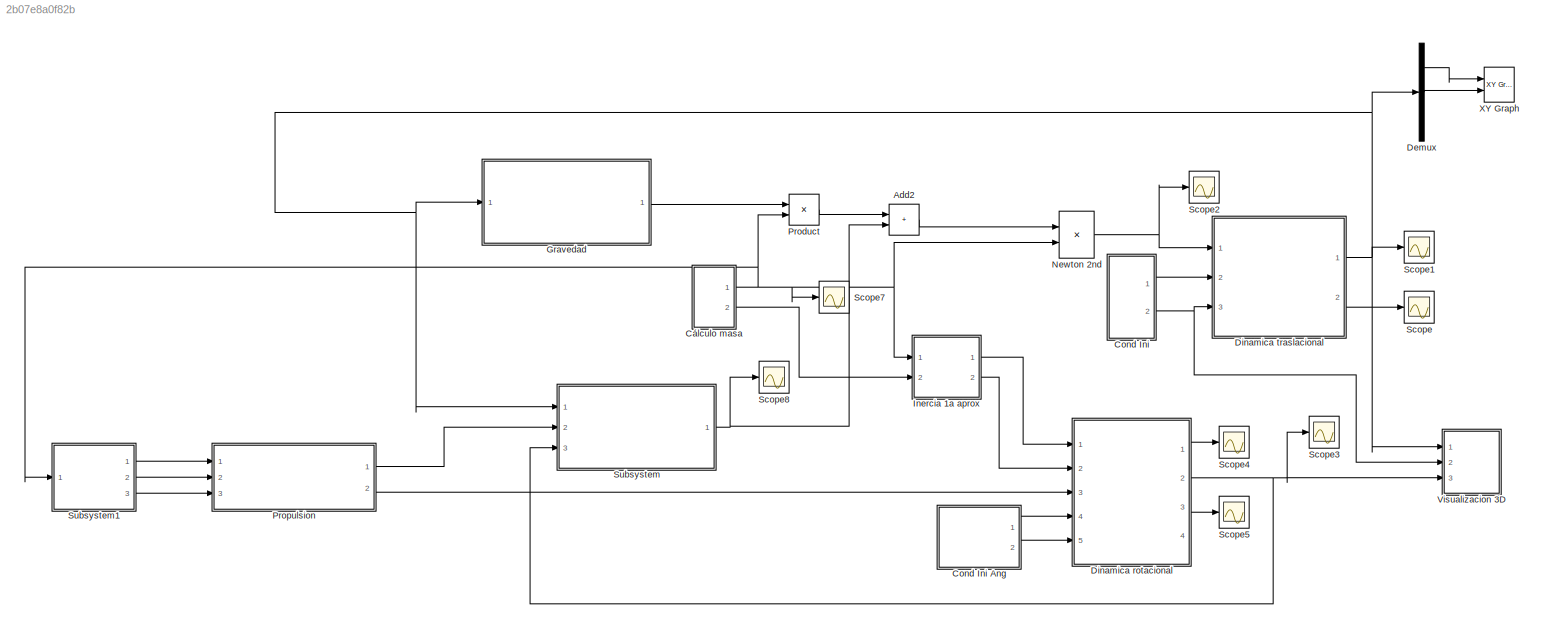
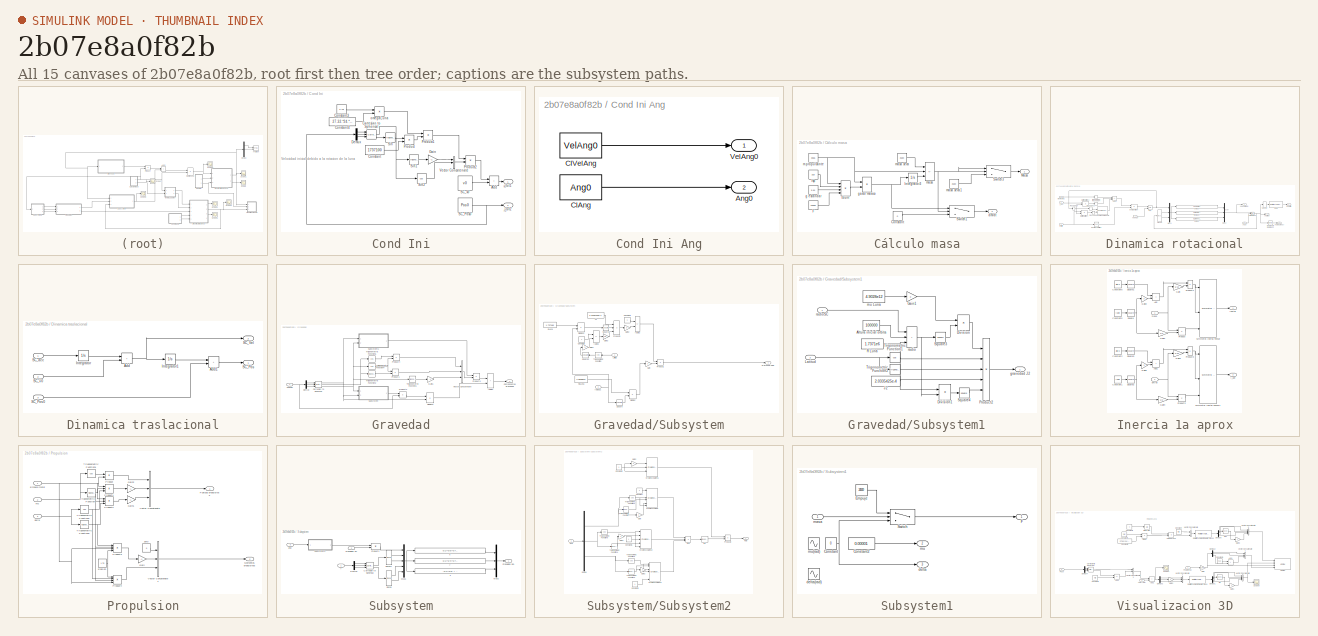
[diagram: thumbnail index - all 15 canvases of the model, root first then tree order]
MODEL slx_2b07e8a0f82b
KIND model
CONFIG AbsTol = auto
CONFIG EnableMultiTasking = off
CONFIG FixedStep = auto
CONFIG MaxStep = auto
CONFIG MinStep = auto
CONFIG RelTol = 1e-3
CONFIG SampleTimeConstraint = Unconstrained
CONFIG SolverName = VariableStepAuto
CONFIG StartTime = 0.0
CONFIG StopTime = 300
WORKSPACE source: mxarray member
WORKSPACE Ang0 = [0 0 0]
WORKSPACE VelAng0 = [0 0 0]
WORKSPACE altura = 3.5
WORKSPACE delta = 0.05
WORKSPACE mu = 0.01
WORKSPACE r = 2.25
WORKSPACE radio = 2.25
BLOCK [Sum] Add2
  IconShape = rectangular
  Ports = [2, 1]
BLOCK [SubSystem] Cond Ini
  Ports = [0, 2]
  RequestExecContextInheritance = off
BLOCK [SubSystem] Cond Ini Ang
  Ports = [0, 2]
  RequestExecContextInheritance = off
BLOCK [Outport] Cond Ini Ang/Ang0
  IconDisplay = Signal name
  Port = 2
BLOCK [Constant] Cond Ini Ang/CIAng
  Value = Ang0
  VectorParams1D = off
BLOCK [Constant] Cond Ini Ang/CIVelAng
  Value = VelAng0
  VectorParams1D = off
BLOCK [Outport] Cond Ini Ang/VelAng0
  IconDisplay = Signal name
BLOCK [Sum] Cond Ini/Add
  IconShape = rectangular
  Ports = [2, 1]
BLOCK [Reference] Cond Ini/Cartesian to Spherical  REF=simulink_extras/Transformations/Cartesian to
Spherical
  Ports = [3, 3]
  SourceBlock = simulink_extras/Transformations/Cartesian to\nSpherical
  SourceProductBaseCode = SL
  SourceType = Cart2Sph
BLOCK [Constant] Cond Ini/Constant
  Value = 1737100
BLOCK [Constant] Cond Ini/Constant3
  Value = 2.*pi
BLOCK [Constant] Cond Ini/Constant4
  Value = 27.32.*24.*3600
BLOCK [Demux] Cond Ini/Demux
  Outputs = 3
  Ports = [1, 3]
BLOCK [Gain] Cond Ini/Gain
  Gain = -1
BLOCK [Outport] Cond Ini/Out1
  IconDisplay = Signal name
BLOCK [Outport] Cond Ini/Out2
  IconDisplay = Signal name
  Port = 2
BLOCK [Product] Cond Ini/Product
  Ports = [2, 1]
BLOCK [Product] Cond Ini/Product1
  Ports = [2, 1]
BLOCK [Product] Cond Ini/Product2
  Ports = [2, 1]
BLOCK [Constant] Cond Ini/SC_Pos0
  Value = Pos0
  VectorParams1D = off
BLOCK [Constant] Cond Ini/SC_v0
  Value = v0
  VectorParams1D = off
BLOCK [Trigonometry] Cond Ini/Sin
  Ports = [1, 1]
BLOCK [Trigonometry] Cond Ini/Sin1
  Ports = [1, 1]
BLOCK [Trigonometry] Cond Ini/Sin2
  Operator = cos
  Ports = [1, 1]
BLOCK [Concatenate] Cond Ini/Vector Concatenate
  NumInputs = 3
  Ports = [3, 1]
BLOCK [Product] Cond Ini/omegaLuna
  Inputs = */
  Ports = [2, 1]
BLOCK [SubSystem] Cálculo masa
  Ports = [0, 2]
  RequestExecContextInheritance = off
BLOCK [Constant] Cálculo masa/Constant
  Value = 0
BLOCK [Constant] Cálculo masa/F
  Value = 24500
BLOCK [Integrator] Cálculo masa/Integrator3
  Ports = [1, 1]
BLOCK [Constant] Cálculo masa/Isp
  Value = 315
BLOCK [Outport] Cálculo masa/Masa
BLOCK [Switch] Cálculo masa/Switch1
  Criteria = u2 > Threshold
  InputSameDT = off
  SaturateOnIntegerOverflow = off
  Threshold = 2530
BLOCK [Switch] Cálculo masa/Switch3
  Criteria = u2 > Threshold
  InputSameDT = off
  SaturateOnIntegerOverflow = off
  Threshold = 2530
BLOCK [Outport] Cálculo masa/dm//dt
  Port = 2
BLOCK [Constant] Cálculo masa/g estandar
  Value = 9.81
BLOCK [Product] Cálculo masa/gasto másico
  Inputs = */
  Ports = [2, 1]
BLOCK [Constant] Cálculo masa/m propulsante
  Value = 2555
BLOCK [Sum] Cálculo masa/masa
  IconShape = rectangular
  Inputs = ++-
  Ports = [3, 1]
BLOCK [Constant] Cálculo masa/masa seca
  Value = 2530
BLOCK [Constant] Cálculo masa/masa seca1
  Value = 2530
BLOCK [Product] Cálculo masa/tburn
  Inputs = ***/
  Ports = [4, 1]
BLOCK [Demux] Demux
  Outputs = 3
  Ports = [1, 3]
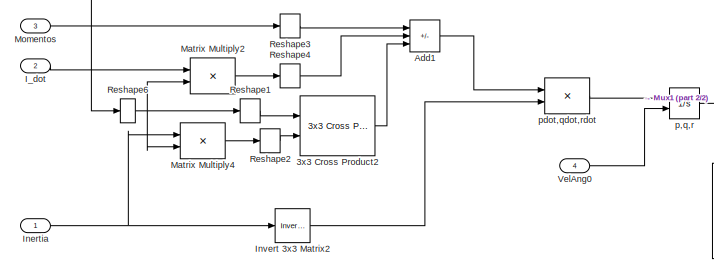
[diagram: Dinamica rotacional - part 1/2, left side, full height]
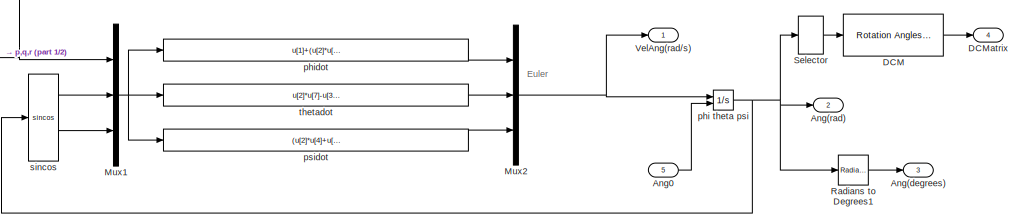
[diagram: Dinamica rotacional - part 2/2, middle right region]
BLOCK [SubSystem] Dinamica rotacional
  Ports = [5, 4]
  RequestExecContextInheritance = off
BLOCK [Reference] Dinamica rotacional/3x3 Cross Product2  REF=sharedutil/3x3 Cross Product
  Ports = [2, 1]
  SourceBlock = sharedutil/3x3 Cross Product
  SourceProductBaseCode = AE,PW,MT,UV,VE,VP
  SourceType = CrossProduct
BLOCK [Sum] Dinamica rotacional/Add1
  IconShape = rectangular
  Inputs = +--
  Ports = [3, 1]
BLOCK [Outport] Dinamica rotacional/Ang(degrees)
  Port = 3
BLOCK [Outport] Dinamica rotacional/Ang(rad)
  Port = 2
BLOCK [Inport] Dinamica rotacional/Ang0
  Port = 5
BLOCK [Reference] Dinamica rotacional/DCM  REF=sharedtransform/Rotation Angles to
Direction Cosine Matrix
  AttributesFormatString = Rotation Order: %<rotationOrder>
  Ports = [1, 1]
  SourceBlock = sharedtransform/Rotation Angles to\nDirection Cosine Matrix
  SourceProductBaseCode = AE,PW,MT,UV,VE,VP
  SourceType = Ang2DCM
BLOCK [Outport] Dinamica rotacional/DCMatrix
  Port = 4
BLOCK [Inport] Dinamica rotacional/I_dot
  Port = 2
BLOCK [Inport] Dinamica rotacional/Inertia
BLOCK [Reference] Dinamica rotacional/Invert 3x3 Matrix2  REF=aerolibutil/Invert 
3x3 Matrix
  Ports = [1, 1]
  SourceBlock = aerolibutil/Invert \n3x3 Matrix
  SourceProductBaseCode = AE
  SourceType = Invert 3x3 Matrix
BLOCK [Product] Dinamica rotacional/Matrix Multiply2
  Multiplication = Matrix(*)
  Ports = [2, 1]
BLOCK [Product] Dinamica rotacional/Matrix Multiply4
  Multiplication = Matrix(*)
  Ports = [2, 1]
BLOCK [Inport] Dinamica rotacional/Momentos
  Port = 3
BLOCK [Mux] Dinamica rotacional/Mux1
  DisplayOption = bar
  Inputs = [3 3 3]
  Ports = [3, 1]
BLOCK [Mux] Dinamica rotacional/Mux2
  DisplayOption = bar
  Inputs = 3
  Ports = [3, 1]
BLOCK [Reference] Dinamica rotacional/Radians to Degrees1  REF=simulink_extras/Transformations/Radians
to Degrees
  Ports = [1, 1]
  SourceBlock = simulink_extras/Transformations/Radians\nto Degrees
  SourceProductBaseCode = SL
  SourceType = RadiansToDegrees
BLOCK [Reshape] Dinamica rotacional/Reshape1
  OutputDimensionality = Row vector (2-D)
  Ports = [1, 1]
BLOCK [Reshape] Dinamica rotacional/Reshape2
  OutputDimensionality = Row vector (2-D)
  Ports = [1, 1]
BLOCK [Reshape] Dinamica rotacional/Reshape3
  OutputDimensionality = Row vector (2-D)
  Ports = [1, 1]
BLOCK [Reshape] Dinamica rotacional/Reshape4
  OutputDimensionality = Row vector (2-D)
  Ports = [1, 1]
BLOCK [Reshape] Dinamica rotacional/Reshape6
  OutputDimensionality = Column vector (2-D)
  Ports = [1, 1]
BLOCK [Selector] Dinamica rotacional/Selector
  IndexOptions = Index vector (dialog)
  Indices = [3 2 1]
  InputPortWidth = 3
  OutputSizes = 1
  Ports = [1, 1]
BLOCK [Outport] Dinamica rotacional/VelAng(rad//s)
BLOCK [Inport] Dinamica rotacional/VelAng0
  Port = 4
BLOCK [Integrator] Dinamica rotacional/p,q,r
  InitialConditionSource = external
  Ports = [2, 1]
BLOCK [Product] Dinamica rotacional/pdot,qdot,rdot
  Multiplication = Matrix(*)
  Ports = [2, 1]
BLOCK [Integrator] Dinamica rotacional/phi theta psi
  InitialConditionSource = external
  Ports = [2, 1]
  WrapState = on
BLOCK [Fcn] Dinamica rotacional/phidot
  Expr = u[1]+(u[2]*u[4]+u[3]*u[7])*(u[5]/u[8])
BLOCK [Fcn] Dinamica rotacional/psidot
  Expr = (u[2]*u[4]+u[3]*u[7])/u[8]
BLOCK [Trigonometry] Dinamica rotacional/sincos
  Operator = sincos
  Ports = [1, 2]
BLOCK [Fcn] Dinamica rotacional/thetadot
  Expr = u[2]*u[7]-u[3]*u[4]
BLOCK [SubSystem] Dinamica traslacional
  Ports = [3, 2]
  RequestExecContextInheritance = off
BLOCK [Sum] Dinamica traslacional/Add
  IconShape = rectangular
  Ports = [2, 1]
BLOCK [Sum] Dinamica traslacional/Add1
  IconShape = rectangular
  Ports = [2, 1]
BLOCK [Integrator] Dinamica traslacional/Integrator
  Ports = [1, 1]
BLOCK [Integrator] Dinamica traslacional/Integrator1
  Ports = [1, 1]
BLOCK [Outport] Dinamica traslacional/SC_Pos
BLOCK [Inport] Dinamica traslacional/SC_Pos0
  Port = 3
BLOCK [Outport] Dinamica traslacional/SC_Vel
  Port = 2
BLOCK [Inport] Dinamica traslacional/SC_acc
BLOCK [Inport] Dinamica traslacional/SC_v0
  Port = 2
BLOCK [SubSystem] Gravedad
  Ports = [1, 1]
  RequestExecContextInheritance = off
BLOCK [Reference] Gravedad/Cartesian to Spherical  REF=simulink_extras/Transformations/Cartesian to
Spherical
  Ports = [3, 3]
  SourceBlock = simulink_extras/Transformations/Cartesian to\nSpherical
  SourceProductBaseCode = SL
  SourceType = Cart2Sph
BLOCK [Outport] Gravedad/Componentes gravedad
BLOCK [Demux] Gravedad/Demux
  Outputs = 3
  Ports = [1, 3]
BLOCK [Product] Gravedad/Division2
  Inputs = */
  Ports = [2, 1]
BLOCK [Gain] Gravedad/Gain1
  Gain = -1
BLOCK [Inport] Gravedad/Position
BLOCK [Product] Gravedad/Product1
  Ports = [2, 1]
BLOCK [Product] Gravedad/Product2
  Ports = [2, 1]
BLOCK [Product] Gravedad/Product3
  Ports = [2, 1]
BLOCK [Product] Gravedad/Product4
  Ports = [2, 1]
BLOCK [SubSystem] Gravedad/Subsystem
  Ports = [2, 1]
  RequestExecContextInheritance = off
BLOCK [Constant] Gravedad/Subsystem/Constant1
BLOCK [Constant] Gravedad/Subsystem/Constant2
BLOCK [Product] Gravedad/Subsystem/Division
  Inputs = */
  Ports = [2, 1]
BLOCK [Product] Gravedad/Subsystem/Division2
  Inputs = */
  Ports = [2, 1]
BLOCK [Gain] Gravedad/Subsystem/Gain
  Gain = -1
BLOCK [Gain] Gravedad/Subsystem/Gain2
  Gain = 3
BLOCK [Gain] Gravedad/Subsystem/Gain3
  Gain = 0.5
BLOCK [Gain] Gravedad/Subsystem/Gain4
  Gain = 3
BLOCK [Constant] Gravedad/Subsystem/J2
  Value = 2.0335425e-4
BLOCK [Inport] Gravedad/Subsystem/Latitud
BLOCK [Product] Gravedad/Subsystem/Product1
  Ports = [2, 1]
BLOCK [Product] Gravedad/Subsystem/Product3
  Inputs = 3
  Ports = [3, 1]
BLOCK [Constant] Gravedad/Subsystem/R Luna
  Value = 1.7371e6
BLOCK [Math] Gravedad/Subsystem/Square
  Operator = square
  Ports = [1, 1]
BLOCK [Math] Gravedad/Subsystem/Square1
  Operator = square
  Ports = [1, 1]
BLOCK [Math] Gravedad/Subsystem/Square2
  Operator = square
  Ports = [1, 1]
BLOCK [Trigonometry] Gravedad/Subsystem/Trigonometric Function
  Operator = cos
  Ports = [1, 1]
BLOCK [Outport] Gravedad/Subsystem/gravedad radial
BLOCK [Constant] Gravedad/Subsystem/mu Luna
  Value = 4.9028e12
BLOCK [Sum] Gravedad/Subsystem/radio2
  IconShape = rectangular
  Inputs = +-
  Ports = [2, 1]
BLOCK [Sum] Gravedad/Subsystem/radio3
  IconShape = rectangular
  Inputs = -+
  Ports = [2, 1]
BLOCK [Inport] Gravedad/Subsystem/radioSC
  Port = 2
BLOCK [SubSystem] Gravedad/Subsystem1
  Ports = [2, 1]
  RequestExecContextInheritance = off
BLOCK [Constant] Gravedad/Subsystem1/Altura inicial orbita
  Value = 100000
BLOCK [Product] Gravedad/Subsystem1/Division
  Inputs = */
  Ports = [2, 1]
BLOCK [Product] Gravedad/Subsystem1/Division1
  Inputs = */
  Ports = [2, 1]
BLOCK [Gain] Gravedad/Subsystem1/Gain1
  Gain = 3
BLOCK [Constant] Gravedad/Subsystem1/J2
  Value = 2.0335425e-4
BLOCK [Inport] Gravedad/Subsystem1/Latitud
  Port = 2
BLOCK [Product] Gravedad/Subsystem1/Product2
  Inputs = 5
  Ports = [5, 1]
BLOCK [Constant] Gravedad/Subsystem1/R Luna
  Value = 1.7371e6
BLOCK [Math] Gravedad/Subsystem1/Square3
  Operator = square
  Ports = [1, 1]
BLOCK [Math] Gravedad/Subsystem1/Square4
  Operator = square
  Ports = [1, 1]
BLOCK [Trigonometry] Gravedad/Subsystem1/Trigonometric Function1
  Operator = cos
  Ports = [1, 1]
BLOCK [Trigonometry] Gravedad/Subsystem1/Trigonometric Function2
  Ports = [1, 1]
BLOCK [Outport] Gravedad/Subsystem1/gravedad J2
BLOCK [Constant] Gravedad/Subsystem1/mu Luna
  Value = 4.9028e12
BLOCK [Sum] Gravedad/Subsystem1/radio
  IconShape = rectangular
  Inputs = +++
  Ports = [3, 1]
BLOCK [Inport] Gravedad/Subsystem1/radioSC
BLOCK [Trigonometry] Gravedad/Trigonometric Function1
  Ports = [1, 1]
BLOCK [Trigonometry] Gravedad/Trigonometric Function2
  Ports = [1, 1]
BLOCK [Trigonometry] Gravedad/Trigonometric Function4
  Operator = cos
  Ports = [1, 1]
BLOCK [Trigonometry] Gravedad/Trigonometric Function5
  Operator = cos
  Ports = [1, 1]
BLOCK [Concatenate] Gravedad/Vector Concatenate
  NumInputs = 3
  Ports = [3, 1]
BLOCK [Sum] Gravedad/radio2
  IconShape = rectangular
  Ports = [2, 1]
BLOCK [SubSystem] Inercia 1a aprox
  Ports = [2, 2]
  RequestExecContextInheritance = off
BLOCK [Sum] Inercia 1a aprox/Add
  IconShape = rectangular
  Ports = [2, 1]
BLOCK [Sum] Inercia 1a aprox/Add1
  IconShape = rectangular
  Ports = [2, 1]
BLOCK [Constant] Inercia 1a aprox/Constant1
  Value = radio
BLOCK [Constant] Inercia 1a aprox/Constant2
  Value = altura
BLOCK [Constant] Inercia 1a aprox/Constant5
  Value = radio
BLOCK [Constant] Inercia 1a aprox/Constant6
  Value = altura
BLOCK [Gain] Inercia 1a aprox/Gain
  Gain = 1/12
BLOCK [Gain] Inercia 1a aprox/Gain1
  Gain = 1/2
BLOCK [Gain] Inercia 1a aprox/Gain2
  Gain = 3
BLOCK [Gain] Inercia 1a aprox/Gain3
  Gain = 1/12
BLOCK [Gain] Inercia 1a aprox/Gain4
  Gain = 1/2
BLOCK [Gain] Inercia 1a aprox/Gain5
  Gain = 3
BLOCK [Outport] Inercia 1a aprox/I_dot
  Port = 2
BLOCK [Outport] Inercia 1a aprox/Inertia
BLOCK [Product] Inercia 1a aprox/Product
  Ports = [2, 1]
BLOCK [Product] Inercia 1a aprox/Product1
  Ports = [2, 1]
BLOCK [Product] Inercia 1a aprox/Product2
  Ports = [2, 1]
BLOCK [Product] Inercia 1a aprox/Product3
  Ports = [2, 1]
BLOCK [Math] Inercia 1a aprox/Square
  Operator = square
  Ports = [1, 1]
BLOCK [Math] Inercia 1a aprox/Square1
  Operator = square
  Ports = [1, 1]
BLOCK [Math] Inercia 1a aprox/Square2
  Operator = square
  Ports = [1, 1]
BLOCK [Math] Inercia 1a aprox/Square3
  Operator = square
  Ports = [1, 1]
BLOCK [Reference] Inercia 1a aprox/Symmetric Inertia Tensor  REF=aerolibbdyn/Symmetric Inertia Tensor
  Ports = [6, 1]
  SourceBlock = aerolibbdyn/Symmetric Inertia Tensor
  SourceProductBaseCode = AE
  SourceType = Symmetric Inertia Tensor
BLOCK [Reference] Inercia 1a aprox/Symmetric Inertia Tensor1  REF=aerolibbdyn/Symmetric Inertia Tensor
  Ports = [6, 1]
  SourceBlock = aerolibbdyn/Symmetric Inertia Tensor
  SourceProductBaseCode = AE
  SourceType = Symmetric Inertia Tensor
BLOCK [Inport] Inercia 1a aprox/dm//dt
  Port = 2
BLOCK [Inport] Inercia 1a aprox/masa
BLOCK [Product] Newton 2nd
  Inputs = */
  Ports = [2, 1]
BLOCK [Product] Product
  Ports = [2, 1]
BLOCK [SubSystem] Propulsion
  Ports = [3, 2]
  RequestExecContextInheritance = off
BLOCK [Inport] Propulsion/Empuje motor
BLOCK [Constant] Propulsion/Epsilon
  Value = 1.75
BLOCK [Outport] Propulsion/Fuerzas propulsivas
BLOCK [Gain] Propulsion/Gain
  Gain = -1
BLOCK [Gain] Propulsion/Gain1
  Gain = -1
BLOCK [Gain] Propulsion/Gain2
  Gain = -1
BLOCK [Outport] Propulsion/Momentos propulsivos
  Port = 2
BLOCK [Product] Propulsion/Product
  Ports = [2, 1]
BLOCK [Product] Propulsion/Product1
  Inputs = 3
  Ports = [3, 1]
BLOCK [Product] Propulsion/Product2
  Inputs = 3
  Ports = [3, 1]
BLOCK [Product] Propulsion/Product3
  Inputs = 4
  Ports = [4, 1]
BLOCK [Product] Propulsion/Product4
  Inputs = 4
  Ports = [4, 1]
BLOCK [Trigonometry] Propulsion/Trigonometric Function
  Ports = [1, 1]
BLOCK [Trigonometry] Propulsion/Trigonometric Function1
  Operator = cos
  Ports = [1, 1]
BLOCK [Trigonometry] Propulsion/Trigonometric Function2
  Operator = cos
  Ports = [1, 1]
BLOCK [Trigonometry] Propulsion/Trigonometric Function3
  Ports = [1, 1]
BLOCK [Concatenate] Propulsion/Vector Concatenate
  NumInputs = 3
  Ports = [3, 1]
BLOCK [Concatenate] Propulsion/Vector Concatenate1
  NumInputs = 3
  Ports = [3, 1]
BLOCK [Inport] Propulsion/delta
  Port = 3
BLOCK [Inport] Propulsion/mu
  Port = 2
BLOCK [Constant] Propulsion/zero
  Value = 0
BLOCK [Scope] Scope
  Floating = off
  NumInputPorts = 1
  Ports = [1]
  ScopeSpecificationString = Simulink.scopes.TimeScopeBlockCfg('CurrentConfiguration', extmgr.ConfigurationSet(extmgr.Configuration('Core','General UI',true),extmgr.Configuration('Core','Source UI',true),extmgr.Configuration('Sources','WiredSimulink',true,'DataLoggingVariableName','ScopeData1'),extmgr.Configuration('Visuals','Time Domain',true,'SerializedDisplays',{struct('MinYLimReal','-124.77245','MaxYLimReal','1122.95202',...<+1835ch>
BLOCK [Scope] Scope1
  Floating = off
  NumInputPorts = 1
  Ports = [1]
  ScopeSpecificationString = Simulink.scopes.TimeScopeBlockCfg('CurrentConfiguration', extmgr.ConfigurationSet(extmgr.Configuration('Core','General UI',true),extmgr.Configuration('Core','Source UI',true),extmgr.Configuration('Sources','WiredSimulink',true),extmgr.Configuration('Visuals','Time Domain',true,'SerializedDisplays',{struct('MinYLimReal','1734234.95178','MaxYLimReal','1741341.918','YLabelReal','','MinYLimMag','17342...<+1816ch>
BLOCK [Scope] Scope2
  Floating = off
  NumInputPorts = 1
  Ports = [1]
  ScopeSpecificationString = Simulink.scopes.TimeScopeBlockCfg('CurrentConfiguration', extmgr.ConfigurationSet(extmgr.Configuration('Core','General UI',true),extmgr.Configuration('Core','Source UI',true),extmgr.Configuration('Sources','WiredSimulink',true,'DataLoggingVariableName','ScopeData1'),extmgr.Configuration('Visuals','Time Domain',true,'SerializedDisplays',{struct('MinYLimReal','-1.77686','MaxYLimReal','1.65732','YLab...<+1508ch>
BLOCK [Scope] Scope3
  Floating = off
  NumInputPorts = 1
  Ports = [1]
  ScopeSpecificationString = Simulink.scopes.TimeScopeBlockCfg('CurrentConfiguration', extmgr.ConfigurationSet(extmgr.Configuration('Core','General UI',true),extmgr.Configuration('Core','Source UI',true),extmgr.Configuration('Sources','WiredSimulink',true,'DataLoggingVariableName','ScopeData2'),extmgr.Configuration('Visuals','Time Domain',true,'SerializedDisplays',{struct('MinYLimReal','-3.88724','MaxYLimReal','3.82661','YLab...<+1819ch>
BLOCK [Scope] Scope4
  Floating = off
  NumInputPorts = 1
  Ports = [1]
  ScopeSpecificationString = Simulink.scopes.TimeScopeBlockCfg('CurrentConfiguration', extmgr.ConfigurationSet(extmgr.Configuration('Core','General UI',true),extmgr.Configuration('Core','Source UI',true),extmgr.Configuration('Sources','WiredSimulink',true,'DataLoggingVariableName','ScopeData3'),extmgr.Configuration('Visuals','Time Domain',true,'SerializedDisplays',{struct('MinYLimReal','-1.00000','MaxYLimReal','1.00000','YLab...<+1434ch>
BLOCK [Scope] Scope5
  Floating = off
  NumInputPorts = 1
  Ports = [1]
  ScopeSpecificationString = Simulink.scopes.TimeScopeBlockCfg('CurrentConfiguration', extmgr.ConfigurationSet(extmgr.Configuration('Core','General UI',true),extmgr.Configuration('Core','Source UI',true),extmgr.Configuration('Sources','WiredSimulink',true,'DataLoggingVariableName','ScopeData2'),extmgr.Configuration('Visuals','Time Domain',true,'SerializedDisplays',{struct('MinYLimReal','-221.33067','MaxYLimReal','213.2335','Y...<+1446ch>
BLOCK [Scope] Scope7
  Floating = off
  NumInputPorts = 1
  Ports = [1]
  ScopeSpecificationString = Simulink.scopes.TimeScopeBlockCfg('CurrentConfiguration', extmgr.ConfigurationSet(extmgr.Configuration('Core','General UI',true),extmgr.Configuration('Core','Source UI',true),extmgr.Configuration('Sources','WiredSimulink',true,'DataLoggingVariableName','ScopeData1'),extmgr.Configuration('Visuals','Time Domain',true,'SerializedDisplays',{struct('MinYLimReal','2237.5','MaxYLimReal','5162.5','YLabelR...<+1440ch>
BLOCK [Scope] Scope8
  Floating = off
  NumInputPorts = 1
  Ports = [1]
  ScopeSpecificationString = Simulink.scopes.TimeScopeBlockCfg('CurrentConfiguration', extmgr.ConfigurationSet(extmgr.Configuration('Core','General UI',true),extmgr.Configuration('Core','Source UI',true),extmgr.Configuration('Sources','WiredSimulink',true,'DataLoggingVariableName','ScopeData1'),extmgr.Configuration('Visuals','Time Domain',true,'SerializedDisplays',{struct('MinYLimReal','-35037.11989','MaxYLimReal','36837.7738...<+1808ch>
BLOCK [SubSystem] Subsystem
  Ports = [3, 1]
  RequestExecContextInheritance = off
BLOCK [Reference] Subsystem/Cartesian to Spherical  REF=simulink_extras/Transformations/Cartesian to
Spherical
  Ports = [3, 3]
  SourceBlock = simulink_extras/Transformations/Cartesian to\nSpherical
  SourceProductBaseCode = SL
  SourceType = Cart2Sph
BLOCK [Demux] Subsystem/Demux
  Outputs = 3
  Ports = [1, 3]
BLOCK [Mux] Subsystem/Mux1
  DisplayOption = bar
  Inputs = [3 1 1 1 1]
  Ports = [5, 1]
BLOCK [Mux] Subsystem/Mux2
  DisplayOption = bar
  Inputs = 3
  Ports = [3, 1]
BLOCK [Product] Subsystem/Product2
  Multiplication = Matrix(*)
  Ports = [2, 1]
BLOCK [Outport] Subsystem/Propulsion EQ
BLOCK [Inport] Subsystem/Propulsion SC
  Port = 2
BLOCK [SubSystem] Subsystem/Subsystem2
  Ports = [1, 1]
  RequestExecContextInheritance = off
BLOCK [Constant] Subsystem/Subsystem2/Constant
BLOCK [Constant] Subsystem/Subsystem2/Constant1
BLOCK [Constant] Subsystem/Subsystem2/Constant2
BLOCK [Constant] Subsystem/Subsystem2/Constant3
BLOCK [Reference] Subsystem/Subsystem2/Create 3x3 Matrix  REF=sharedutil/Create 3x3 Matrix
  Ports = [9, 1]
  SourceBlock = sharedutil/Create 3x3 Matrix
  SourceProductBaseCode = AE,PW,MT,UV,VE,VP
  SourceType = Create 3x3 Matrix
BLOCK [Reference] Subsystem/Subsystem2/Create 3x3 Matrix1  REF=sharedutil/Create 3x3 Matrix
  Ports = [9, 1]
  SourceBlock = sharedutil/Create 3x3 Matrix
  SourceProductBaseCode = AE,PW,MT,UV,VE,VP
  SourceType = Create 3x3 Matrix
BLOCK [Reference] Subsystem/Subsystem2/Create 3x3 Matrix2  REF=sharedutil/Create 3x3 Matrix
  Ports = [9, 1]
  SourceBlock = sharedutil/Create 3x3 Matrix
  SourceProductBaseCode = AE,PW,MT,UV,VE,VP
  SourceType = Create 3x3 Matrix
BLOCK [Reference] Subsystem/Subsystem2/Create 3x3 Matrix3  REF=sharedutil/Create 3x3 Matrix
  Ports = [9, 1]
  SourceBlock = sharedutil/Create 3x3 Matrix
  SourceProductBaseCode = AE,PW,MT,UV,VE,VP
  SourceType = Create 3x3 Matrix
BLOCK [Demux] Subsystem/Subsystem2/Demux
  Outputs = 3
  Ports = [1, 3]
BLOCK [Gain] Subsystem/Subsystem2/Gain
  Gain = -1
BLOCK [Gain] Subsystem/Subsystem2/Gain1
  Gain = -1
BLOCK [Gain] Subsystem/Subsystem2/Gain2
  Gain = -1
BLOCK [Gain] Subsystem/Subsystem2/Gain3
  Gain = -1
BLOCK [Product] Subsystem/Subsystem2/Product2
  Multiplication = Matrix(*)
  Ports = [2, 1]
BLOCK [Outport] Subsystem/Subsystem2/Ralo
BLOCK [Product] Subsystem/Subsystem2/Rloa
  Inputs = 3
  Multiplication = Matrix(*)
  Ports = [3, 1]
BLOCK [Trigonometry] Subsystem/Subsystem2/Trigonometric Function
  Ports = [1, 1]
BLOCK [Trigonometry] Subsystem/Subsystem2/Trigonometric Function1
  Operator = cos
  Ports = [1, 1]
BLOCK [Trigonometry] Subsystem/Subsystem2/Trigonometric Function2
  Operator = cos
  Ports = [1, 1]
BLOCK [Trigonometry] Subsystem/Subsystem2/Trigonometric Function3
  Ports = [1, 1]
BLOCK [Trigonometry] Subsystem/Subsystem2/Trigonometric Function4
  Ports = [1, 1]
BLOCK [Trigonometry] Subsystem/Subsystem2/Trigonometric Function5
  Operator = cos
  Ports = [1, 1]
BLOCK [Inport] Subsystem/Subsystem2/ang
BLOCK [Reference] Subsystem/Subsystem2/inv  REF=aerolibutil/Invert 
3x3 Matrix
  Ports = [1, 1]
  SourceBlock = aerolibutil/Invert \n3x3 Matrix
  SourceProductBaseCode = AE
  SourceType = Invert 3x3 Matrix
BLOCK [Inport] Subsystem/ang
  Port = 3
BLOCK [Inport] Subsystem/r
BLOCK [Trigonometry] Subsystem/sincos
  Operator = sincos
  Ports = [1, 2]
BLOCK [Trigonometry] Subsystem/sincos1
  Operator = sincos
  Ports = [1, 2]
BLOCK [Fcn] Subsystem/x
  Expr = u[1]*u[5]*u[7]-u[2]*u[4]+u[3]*u[5]*u[6]
BLOCK [Fcn] Subsystem/y
  Expr = u[1]*u[4]*u[7] + u[2]*u[5] + u[3]*u[4]*u[6]
BLOCK [Fcn] Subsystem/z
  Expr = -u[1]*u[6] + u[3]*u[7]
BLOCK [SubSystem] Subsystem1
  Ports = [1, 3]
  RequestExecContextInheritance = off
BLOCK [Constant] Subsystem1/Constant
  Value = 0
BLOCK [Constant] Subsystem1/Constant2
  Value = 0.00001
BLOCK [Constant] Subsystem1/Empuje
  Value = 24500
BLOCK [Outport] Subsystem1/F
BLOCK [Switch] Subsystem1/Switch
  Criteria = u2 > Threshold
  InputSameDT = off
  SaturateOnIntegerOverflow = off
  Threshold = 2530
BLOCK [Outport] Subsystem1/delta
  Port = 3
BLOCK [Sin] Subsystem1/delta(rad)
  Amplitude = 0.01
  Frequency = 0.001
  Ports = [0, 1]
  SampleTime = 0
BLOCK [Inport] Subsystem1/masa
BLOCK [Outport] Subsystem1/mu
  Port = 2
BLOCK [Sin] Subsystem1/mu(rad)
  Amplitude = 0.05
  Frequency = 0.001
  Ports = [0, 1]
  SampleTime = 0
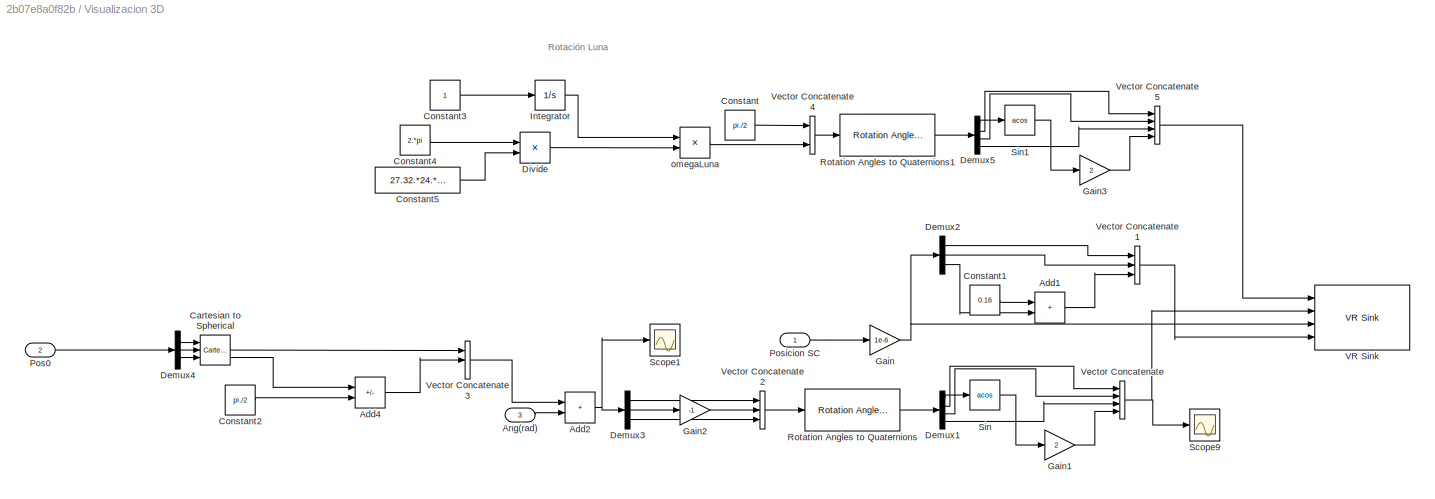
BLOCK [SubSystem] Visualizacion 3D
  Ports = [3]
  RequestExecContextInheritance = off
BLOCK [Sum] Visualizacion 3D/Add1
  IconShape = rectangular
  Ports = [2, 1]
BLOCK [Sum] Visualizacion 3D/Add2
  IconShape = rectangular
  Ports = [2, 1]
BLOCK [Sum] Visualizacion 3D/Add4
  IconShape = rectangular
  Inputs = -+
  Ports = [2, 1]
BLOCK [Inport] Visualizacion 3D/Ang(rad)
  Port = 3
BLOCK [Reference] Visualizacion 3D/Cartesian to Spherical  REF=simulink_extras/Transformations/Cartesian to
Spherical
  Ports = [3, 3]
  SourceBlock = simulink_extras/Transformations/Cartesian to\nSpherical
  SourceProductBaseCode = SL
  SourceType = Cart2Sph
BLOCK [Constant] Visualizacion 3D/Constant
  Value = pi./2
BLOCK [Constant] Visualizacion 3D/Constant1
  Value = 0.16
BLOCK [Constant] Visualizacion 3D/Constant2
  Value = pi./2
BLOCK [Constant] Visualizacion 3D/Constant3
BLOCK [Constant] Visualizacion 3D/Constant4
  Value = 2.*pi
BLOCK [Constant] Visualizacion 3D/Constant5
  Value = 27.32.*24.*3600
BLOCK [Demux] Visualizacion 3D/Demux1
  Ports = [1, 4]
BLOCK [Demux] Visualizacion 3D/Demux2
  Outputs = 3
  Ports = [1, 3]
BLOCK [Demux] Visualizacion 3D/Demux3
  Outputs = 3
  Ports = [1, 3]
BLOCK [Demux] Visualizacion 3D/Demux4
  Outputs = 3
  Ports = [1, 3]
BLOCK [Demux] Visualizacion 3D/Demux5
  Ports = [1, 4]
BLOCK [Product] Visualizacion 3D/Divide
  Inputs = */
  Ports = [2, 1]
BLOCK [Gain] Visualizacion 3D/Gain
  Gain = 1e-6
BLOCK [Gain] Visualizacion 3D/Gain1
  Gain = 2
BLOCK [Gain] Visualizacion 3D/Gain2
  Gain = -1
BLOCK [Gain] Visualizacion 3D/Gain3
  Gain = 2
BLOCK [Integrator] Visualizacion 3D/Integrator
  Ports = [1, 1]
BLOCK [Inport] Visualizacion 3D/Pos0
  Port = 2
BLOCK [Inport] Visualizacion 3D/Posicion SC
BLOCK [Reference] Visualizacion 3D/Rotation Angles to Quaternions  REF=sharedtransform/Rotation Angles to Quaternions
  AttributesFormatString = Rotation Order: %<rotationOrder>
  Ports = [1, 1]
  SourceBlock = sharedtransform/Rotation Angles to Quaternions
  SourceProductBaseCode = AE,PW,MT,UV,VE,VP
  SourceType = Ang2Quat
BLOCK [Reference] Visualizacion 3D/Rotation Angles to Quaternions1  REF=sharedtransform/Rotation Angles to Quaternions
  AttributesFormatString = Rotation Order: %<rotationOrder>
  Ports = [1, 1]
  SourceBlock = sharedtransform/Rotation Angles to Quaternions
  SourceProductBaseCode = AE,PW,MT,UV,VE,VP
  SourceType = Ang2Quat
BLOCK [Scope] Visualizacion 3D/Scope1
  Floating = off
  NumInputPorts = 1
  Ports = [1]
  ScopeSpecificationString = Simulink.scopes.TimeScopeBlockCfg('CurrentConfiguration', extmgr.ConfigurationSet(extmgr.Configuration('Core','General UI',true),extmgr.Configuration('Core','Source UI',true),extmgr.Configuration('Sources','WiredSimulink',true,'DataLoggingVariableName','ScopeData1'),extmgr.Configuration('Visuals','Time Domain',true,'SerializedDisplays',{struct('MinYLimReal','-0.19635','MaxYLimReal','1.76715','YLab...<+1697ch>
BLOCK [Scope] Visualizacion 3D/Scope9
  Floating = off
  NumInputPorts = 1
  Ports = [1]
  ScopeSpecificationString = Simulink.scopes.TimeScopeBlockCfg('CurrentConfiguration', extmgr.ConfigurationSet(extmgr.Configuration('Core','General UI',true),extmgr.Configuration('Core','Source UI',true),extmgr.Configuration('Sources','WiredSimulink',true,'DataLoggingVariableName','ScopeData1'),extmgr.Configuration('Visuals','Time Domain',true,'SerializedDisplays',{struct('MinYLimReal','-0.77551','MaxYLimReal','3.21286','YLab...<+1724ch>
BLOCK [Trigonometry] Visualizacion 3D/Sin
  Operator = acos
  Ports = [1, 1]
BLOCK [Trigonometry] Visualizacion 3D/Sin1
  Operator = acos
  Ports = [1, 1]
BLOCK [Reference] Visualizacion 3D/VR Sink  REF=vrlib/VR Sink
  InstantiateOnLoad = on
  Ports = [4]
  SourceBlock = vrlib/VR Sink
  SourceProductBaseCode = SL
  SourceType = Virtual Reality Sink
BLOCK [Concatenate] Visualizacion 3D/Vector Concatenate
  NumInputs = 4
  Ports = [4, 1]
BLOCK [Concatenate] Visualizacion 3D/Vector Concatenate1
  NumInputs = 3
  Ports = [3, 1]
BLOCK [Concatenate] Visualizacion 3D/Vector Concatenate2
  NumInputs = 3
  Ports = [3, 1]
BLOCK [Concatenate] Visualizacion 3D/Vector Concatenate3
  NumInputs = 3
  Ports = [3, 1]
BLOCK [Concatenate] Visualizacion 3D/Vector Concatenate4
  NumInputs = 3
  Ports = [3, 1]
BLOCK [Concatenate] Visualizacion 3D/Vector Concatenate5
  NumInputs = 4
  Ports = [4, 1]
BLOCK [Product] Visualizacion 3D/omegaLuna
  Ports = [2, 1]
BLOCK [Reference] XY Graph  REF=simulink/Sinks/XY Graph
  Ports = [2]
  SourceBlock = simulink/Sinks/XY Graph
  SourceProductBaseCode = SL
  SourceType = XY scope.
ANNOTATION Cond Ini: Velocidad inicial debido a la rotacion de la luna
ANNOTATION Cond Ini: r0
ANNOTATION Cond Ini: v0
ANNOTATION Dinamica rotacional: Euler
ANNOTATION Visualizacion 3D: Rotación Luna
LINE Add2:1 -> Newton 2nd:1
LINE Cond Ini Ang/CIAng:1 -> Cond Ini Ang/Ang0:1
LINE Cond Ini Ang/CIVelAng:1 -> Cond Ini Ang/VelAng0:1
LINE Cond Ini Ang:1 -> Dinamica rotacional:4
LINE Cond Ini Ang:2 -> Dinamica rotacional:5
LINE Cond Ini/Add:1 -> Cond Ini/Out1:1
NET Cond Ini/Cartesian to Spherical:2 -> Cond Ini/Sin1:1, Cond Ini/Sin2:1
LINE Cond Ini/Cartesian to Spherical:3 -> Cond Ini/Sin:1
LINE Cond Ini/Constant3:1 -> Cond Ini/omegaLuna:1
LINE Cond Ini/Constant4:1 -> Cond Ini/omegaLuna:2
LINE Cond Ini/Constant:1 -> Cond Ini/Product:2
LINE Cond Ini/Demux:1 -> Cond Ini/Cartesian to Spherical:1
LINE Cond Ini/Demux:2 -> Cond Ini/Cartesian to Spherical:2
LINE Cond Ini/Demux:3 -> Cond Ini/Cartesian to Spherical:3
LINE Cond Ini/Gain:1 -> Cond Ini/Vector Concatenate:1
LINE Cond Ini/Product1:1 -> Cond Ini/Product2:1
LINE Cond Ini/Product2:1 -> Cond Ini/Add:1
LINE Cond Ini/Product:1 -> Cond Ini/Product1:2
NET Cond Ini/SC_Pos0:1 -> Cond Ini/Demux:1, Cond Ini/Out2:1
LINE Cond Ini/SC_v0:1 -> Cond Ini/Add:2
LINE Cond Ini/Sin1:1 -> Cond Ini/Gain:1
LINE Cond Ini/Sin2:1 -> Cond Ini/Vector Concatenate:2
LINE Cond Ini/Sin:1 -> Cond Ini/Product:1
LINE Cond Ini/Vector Concatenate:1 -> Cond Ini/Product2:2
LINE Cond Ini/omegaLuna:1 -> Cond Ini/Product1:1
LINE Cond Ini:1 -> Dinamica traslacional:2
NET Cond Ini:2 -> Dinamica traslacional:3, Visualizacion 3D:2
LINE Cálculo masa/Constant:1 -> Cálculo masa/Switch1:3
LINE Cálculo masa/F:1 -> Cálculo masa/tburn:4
LINE Cálculo masa/Integrator3:1 -> Cálculo masa/masa:3
LINE Cálculo masa/Isp:1 -> Cálculo masa/tburn:2
LINE Cálculo masa/Switch1:1 -> Cálculo masa/dm//dt:1
LINE Cálculo masa/Switch3:1 -> Cálculo masa/Masa:1
LINE Cálculo masa/g estandar:1 -> Cálculo masa/tburn:3
NET Cálculo masa/gasto másico:1 -> Cálculo masa/Integrator3:1, Cálculo masa/Switch1:1
NET Cálculo masa/m propulsante:1 -> Cálculo masa/gasto másico:1, Cálculo masa/masa:2, Cálculo masa/tburn:1
LINE Cálculo masa/masa seca1:1 -> Cálculo masa/Switch3:3
LINE Cálculo masa/masa seca:1 -> Cálculo masa/masa:1
NET Cálculo masa/masa:1 -> Cálculo masa/Switch1:2, Cálculo masa/Switch3:1, Cálculo masa/Switch3:2
LINE Cálculo masa/tburn:1 -> Cálculo masa/gasto másico:2
NET Cálculo masa:1 -> Inercia 1a aprox:1, Newton 2nd:2, Product:2, Scope7:1, Subsystem1:1
LINE Cálculo masa:2 -> Inercia 1a aprox:2
LINE Demux:1 -> XY Graph:1
LINE Demux:2 -> XY Graph:2
LINE Dinamica rotacional/3x3 Cross Product2:1 -> Dinamica rotacional/Add1:3
LINE Dinamica rotacional/Add1:1 -> Dinamica rotacional/pdot,qdot,rdot:1
LINE Dinamica rotacional/Ang0:1 -> Dinamica rotacional/phi theta psi:2
LINE Dinamica rotacional/DCM:1 -> Dinamica rotacional/DCMatrix:1
LINE Dinamica rotacional/I_dot:1 -> Dinamica rotacional/Matrix Multiply2:1
NET Dinamica rotacional/Inertia:1 -> Dinamica rotacional/Invert 3x3 Matrix2:1, Dinamica rotacional/Matrix Multiply4:1
LINE Dinamica rotacional/Invert 3x3 Matrix2:1 -> Dinamica rotacional/pdot,qdot,rdot:2
LINE Dinamica rotacional/Matrix Multiply2:1 -> Dinamica rotacional/Reshape4:1
LINE Dinamica rotacional/Matrix Multiply4:1 -> Dinamica rotacional/Reshape2:1
LINE Dinamica rotacional/Momentos:1 -> Dinamica rotacional/Reshape3:1
NET Dinamica rotacional/Mux1:1 -> Dinamica rotacional/phidot:1, Dinamica rotacional/psidot:1, Dinamica rotacional/thetadot:1
NET Dinamica rotacional/Mux2:1 -> Dinamica rotacional/VelAng(rad//s):1, Dinamica rotacional/phi theta psi:1
LINE Dinamica rotacional/Radians to Degrees1:1 -> Dinamica rotacional/Ang(degrees):1
LINE Dinamica rotacional/Reshape1:1 -> Dinamica rotacional/3x3 Cross Product2:1
LINE Dinamica rotacional/Reshape2:1 -> Dinamica rotacional/3x3 Cross Product2:2
LINE Dinamica rotacional/Reshape3:1 -> Dinamica rotacional/Add1:1
LINE Dinamica rotacional/Reshape4:1 -> Dinamica rotacional/Add1:2
NET Dinamica rotacional/Reshape6:1 -> Dinamica rotacional/Matrix Multiply2:2, Dinamica rotacional/Matrix Multiply4:2, Dinamica rotacional/Reshape1:1
LINE Dinamica rotacional/Selector:1 -> Dinamica rotacional/DCM:1
LINE Dinamica rotacional/VelAng0:1 -> Dinamica rotacional/p,q,r:2
NET Dinamica rotacional/p,q,r:1 -> Dinamica rotacional/Mux1:1, Dinamica rotacional/Reshape6:1
LINE Dinamica rotacional/pdot,qdot,rdot:1 -> Dinamica rotacional/p,q,r:1
NET Dinamica rotacional/phi theta psi:1 -> Dinamica rotacional/Ang(rad):1, Dinamica rotacional/Radians to Degrees1:1, Dinamica rotacional/Selector:1, Dinamica rotacional/sincos:1
LINE Dinamica rotacional/phidot:1 -> Dinamica rotacional/Mux2:1
LINE Dinamica rotacional/psidot:1 -> Dinamica rotacional/Mux2:3
LINE Dinamica rotacional/sincos:1 -> Dinamica rotacional/Mux1:2
LINE Dinamica rotacional/sincos:2 -> Dinamica rotacional/Mux1:3
LINE Dinamica rotacional/thetadot:1 -> Dinamica rotacional/Mux2:2
LINE Dinamica rotacional:1 -> Scope4:1
NET Dinamica rotacional:2 -> Scope3:1, Subsystem:3, Visualizacion 3D:3
LINE Dinamica rotacional:3 -> Scope5:1
LINE Dinamica traslacional/Add1:1 -> Dinamica traslacional/SC_Pos:1
NET Dinamica traslacional/Add:1 -> Dinamica traslacional/Integrator1:1, Dinamica traslacional/SC_Vel:1
LINE Dinamica traslacional/Integrator1:1 -> Dinamica traslacional/Add1:1
LINE Dinamica traslacional/Integrator:1 -> Dinamica traslacional/Add:1
LINE Dinamica traslacional/SC_Pos0:1 -> Dinamica traslacional/Add1:2
LINE Dinamica traslacional/SC_acc:1 -> Dinamica traslacional/Integrator:1
LINE Dinamica traslacional/SC_v0:1 -> Dinamica traslacional/Add:2
NET Dinamica traslacional:1 -> Demux:1, Gravedad:1, Scope1:1, Subsystem:1, Visualizacion 3D:1
LINE Dinamica traslacional:2 -> Scope:1
NET Gravedad/Cartesian to Spherical:1 -> Gravedad/Division2:2, Gravedad/Subsystem1:1, Gravedad/Subsystem:2
NET Gravedad/Cartesian to Spherical:2 -> Gravedad/Trigonometric Function2:1, Gravedad/Trigonometric Function5:1
NET Gravedad/Cartesian to Spherical:3 -> Gravedad/Subsystem1:2, Gravedad/Subsystem:1, Gravedad/Trigonometric Function1:1, Gravedad/Trigonometric Function4:1
LINE Gravedad/Demux:1 -> Gravedad/Cartesian to Spherical:1
LINE Gravedad/Demux:2 -> Gravedad/Cartesian to Spherical:2
LINE Gravedad/Demux:3 -> Gravedad/Cartesian to Spherical:3
LINE Gravedad/Division2:1 -> Gravedad/radio2:2
LINE Gravedad/Gain1:1 -> Gravedad/Vector Concatenate:3
NET Gravedad/Position:1 -> Gravedad/Demux:1, Gravedad/Product2:2
LINE Gravedad/Product1:1 -> Gravedad/Vector Concatenate:2
LINE Gravedad/Product2:1 -> Gravedad/Division2:1
LINE Gravedad/Product3:1 -> Gravedad/radio2:1
LINE Gravedad/Product4:1 -> Gravedad/Vector Concatenate:1
LINE Gravedad/Subsystem/Constant1:1 -> Gravedad/Subsystem/radio2:1
LINE Gravedad/Subsystem/Constant2:1 -> Gravedad/Subsystem/radio3:1
LINE Gravedad/Subsystem/Division2:1 -> Gravedad/Subsystem/Square1:1
LINE Gravedad/Subsystem/Division:1 -> Gravedad/Subsystem/Gain:1
LINE Gravedad/Subsystem/Gain2:1 -> Gravedad/Subsystem/radio2:2
LINE Gravedad/Subsystem/Gain3:1 -> Gravedad/Subsystem/Product3:3
LINE Gravedad/Subsystem/Gain4:1 -> Gravedad/Subsystem/radio3:2
LINE Gravedad/Subsystem/Gain:1 -> Gravedad/Subsystem/Product1:2
LINE Gravedad/Subsystem/J2:1 -> Gravedad/Subsystem/Product3:1
LINE Gravedad/Subsystem/Latitud:1 -> Gravedad/Subsystem/Trigonometric Function:1
LINE Gravedad/Subsystem/Product1:1 -> Gravedad/Subsystem/gravedad radial:1
LINE Gravedad/Subsystem/Product3:1 -> Gravedad/Subsystem/Gain2:1
LINE Gravedad/Subsystem/R Luna:1 -> Gravedad/Subsystem/Division2:1
LINE Gravedad/Subsystem/Square1:1 -> Gravedad/Subsystem/Product3:2
LINE Gravedad/Subsystem/Square2:1 -> Gravedad/Subsystem/Gain4:1
LINE Gravedad/Subsystem/Square:1 -> Gravedad/Subsystem/Division:2
LINE Gravedad/Subsystem/Trigonometric Function:1 -> Gravedad/Subsystem/Square2:1
LINE Gravedad/Subsystem/mu Luna:1 -> Gravedad/Subsystem/Division:1
LINE Gravedad/Subsystem/radio2:1 -> Gravedad/Subsystem/Product1:1
LINE Gravedad/Subsystem/radio3:1 -> Gravedad/Subsystem/Gain3:1
NET Gravedad/Subsystem/radioSC:1 -> Gravedad/Subsystem/Division2:2, Gravedad/Subsystem/Square:1
LINE Gravedad/Subsystem1/Altura inicial orbita:1 -> Gravedad/Subsystem1/radio:2
LINE Gravedad/Subsystem1/Division1:1 -> Gravedad/Subsystem1/Square4:1
LINE Gravedad/Subsystem1/Division:1 -> Gravedad/Subsystem1/Product2:1
LINE Gravedad/Subsystem1/Gain1:1 -> Gravedad/Subsystem1/Division:1
LINE Gravedad/Subsystem1/J2:1 -> Gravedad/Subsystem1/Product2:4
NET Gravedad/Subsystem1/Latitud:1 -> Gravedad/Subsystem1/Trigonometric Function1:1, Gravedad/Subsystem1/Trigonometric Function2:1
LINE Gravedad/Subsystem1/Product2:1 -> Gravedad/Subsystem1/gravedad J2:1
NET Gravedad/Subsystem1/R Luna:1 -> Gravedad/Subsystem1/Division1:1, Gravedad/Subsystem1/radio:3
LINE Gravedad/Subsystem1/Square3:1 -> Gravedad/Subsystem1/Division:2
LINE Gravedad/Subsystem1/Square4:1 -> Gravedad/Subsystem1/Product2:5
LINE Gravedad/Subsystem1/Trigonometric Function1:1 -> Gravedad/Subsystem1/Product2:2
LINE Gravedad/Subsystem1/Trigonometric Function2:1 -> Gravedad/Subsystem1/Product2:3
LINE Gravedad/Subsystem1/mu Luna:1 -> Gravedad/Subsystem1/Gain1:1
NET Gravedad/Subsystem1/radio:1 -> Gravedad/Subsystem1/Division1:2, Gravedad/Subsystem1/Square3:1
LINE Gravedad/Subsystem1/radioSC:1 -> Gravedad/Subsystem1/radio:1
LINE Gravedad/Subsystem1:1 -> Gravedad/Product3:1
LINE Gravedad/Subsystem:1 -> Gravedad/Product2:1
LINE Gravedad/Trigonometric Function1:1 -> Gravedad/Gain1:1
LINE Gravedad/Trigonometric Function2:1 -> Gravedad/Product1:2
NET Gravedad/Trigonometric Function4:1 -> Gravedad/Product1:1, Gravedad/Product4:2
LINE Gravedad/Trigonometric Function5:1 -> Gravedad/Product4:1
LINE Gravedad/Vector Concatenate:1 -> Gravedad/Product3:2
LINE Gravedad/radio2:1 -> Gravedad/Componentes gravedad:1
LINE Gravedad:1 -> Product:1
LINE Inercia 1a aprox/Add1:1 -> Inercia 1a aprox/Product3:1
LINE Inercia 1a aprox/Add:1 -> Inercia 1a aprox/Product1:1
LINE Inercia 1a aprox/Constant1:1 -> Inercia 1a aprox/Square2:1
LINE Inercia 1a aprox/Constant2:1 -> Inercia 1a aprox/Square3:1
LINE Inercia 1a aprox/Constant5:1 -> Inercia 1a aprox/Square:1
LINE Inercia 1a aprox/Constant6:1 -> Inercia 1a aprox/Square1:1
LINE Inercia 1a aprox/Gain1:1 -> Inercia 1a aprox/Product:2
LINE Inercia 1a aprox/Gain2:1 -> Inercia 1a aprox/Add:2
LINE Inercia 1a aprox/Gain3:1 -> Inercia 1a aprox/Product3:2
LINE Inercia 1a aprox/Gain4:1 -> Inercia 1a aprox/Product2:2
LINE Inercia 1a aprox/Gain5:1 -> Inercia 1a aprox/Add1:2
LINE Inercia 1a aprox/Gain:1 -> Inercia 1a aprox/Product1:2
NET Inercia 1a aprox/Product1:1 -> Inercia 1a aprox/Symmetric Inertia Tensor:1, Inercia 1a aprox/Symmetric Inertia Tensor:4
LINE Inercia 1a aprox/Product2:1 -> Inercia 1a aprox/Symmetric Inertia Tensor1:6
NET Inercia 1a aprox/Product3:1 -> Inercia 1a aprox/Symmetric Inertia Tensor1:1, Inercia 1a aprox/Symmetric Inertia Tensor1:4
LINE Inercia 1a aprox/Product:1 -> Inercia 1a aprox/Symmetric Inertia Tensor:6
LINE Inercia 1a aprox/Square1:1 -> Inercia 1a aprox/Add:1
NET Inercia 1a aprox/Square2:1 -> Inercia 1a aprox/Gain4:1, Inercia 1a aprox/Gain5:1
LINE Inercia 1a aprox/Square3:1 -> Inercia 1a aprox/Add1:1
NET Inercia 1a aprox/Square:1 -> Inercia 1a aprox/Gain1:1, Inercia 1a aprox/Gain2:1
LINE Inercia 1a aprox/Symmetric Inertia Tensor1:1 -> Inercia 1a aprox/I_dot:1
LINE Inercia 1a aprox/Symmetric Inertia Tensor:1 -> Inercia 1a aprox/Inertia:1
NET Inercia 1a aprox/dm//dt:1 -> Inercia 1a aprox/Gain3:1, Inercia 1a aprox/Product2:1
NET Inercia 1a aprox/masa:1 -> Inercia 1a aprox/Gain:1, Inercia 1a aprox/Product:1
LINE Inercia 1a aprox:1 -> Dinamica rotacional:1
LINE Inercia 1a aprox:2 -> Dinamica rotacional:2
NET Newton 2nd:1 -> Dinamica traslacional:1, Scope2:1
LINE Product:1 -> Add2:1
NET Propulsion/Empuje motor:1 -> Propulsion/Product1:1, Propulsion/Product2:1, Propulsion/Product3:3, Propulsion/Product4:4, Propulsion/Product:2
NET Propulsion/Epsilon:1 -> Propulsion/Product3:4, Propulsion/Product4:1
LINE Propulsion/Gain1:1 -> Propulsion/Vector Concatenate:3
LINE Propulsion/Gain2:1 -> Propulsion/Vector Concatenate:2
LINE Propulsion/Gain:1 -> Propulsion/Vector Concatenate1:2
LINE Propulsion/Product1:1 -> Propulsion/Gain2:1
LINE Propulsion/Product2:1 -> Propulsion/Gain1:1
LINE Propulsion/Product3:1 -> Propulsion/Gain:1
LINE Propulsion/Product4:1 -> Propulsion/Vector Concatenate1:3
LINE Propulsion/Product:1 -> Propulsion/Vector Concatenate:1
LINE Propulsion/Trigonometric Function1:1 -> Propulsion/Product:1
NET Propulsion/Trigonometric Function2:1 -> Propulsion/Product1:3, Propulsion/Product4:2
NET Propulsion/Trigonometric Function3:1 -> Propulsion/Product2:3, Propulsion/Product3:1
NET Propulsion/Trigonometric Function:1 -> Propulsion/Product1:2, Propulsion/Product2:2, Propulsion/Product3:2, Propulsion/Product4:3
LINE Propulsion/Vector Concatenate1:1 -> Propulsion/Momentos propulsivos:1
LINE Propulsion/Vector Concatenate:1 -> Propulsion/Fuerzas propulsivas:1
NET Propulsion/delta:1 -> Propulsion/Trigonometric Function2:1, Propulsion/Trigonometric Function3:1
NET Propulsion/mu:1 -> Propulsion/Trigonometric Function1:1, Propulsion/Trigonometric Function:1
LINE Propulsion/zero:1 -> Propulsion/Vector Concatenate1:1
LINE Propulsion:1 -> Subsystem:2
LINE Propulsion:2 -> Dinamica rotacional:3
LINE Subsystem/Cartesian to Spherical:2 -> Subsystem/sincos1:1
LINE Subsystem/Cartesian to Spherical:3 -> Subsystem/sincos:1
LINE Subsystem/Demux:1 -> Subsystem/Cartesian to Spherical:1
LINE Subsystem/Demux:2 -> Subsystem/Cartesian to Spherical:2
LINE Subsystem/Demux:3 -> Subsystem/Cartesian to Spherical:3
NET Subsystem/Mux1:1 -> Subsystem/x:1, Subsystem/y:1, Subsystem/z:1
LINE Subsystem/Mux2:1 -> Subsystem/Propulsion EQ:1
LINE Subsystem/Product2:1 -> Subsystem/Mux1:1
LINE Subsystem/Propulsion SC:1 -> Subsystem/Product2:2
LINE Subsystem/Subsystem2/Constant1:1 -> Subsystem/Subsystem2/Create 3x3 Matrix2:5
NET Subsystem/Subsystem2/Constant2:1 -> Subsystem/Subsystem2/Create 3x3 Matrix1:5, Subsystem/Subsystem2/Create 3x3 Matrix1:7, Subsystem/Subsystem2/Gain2:1
LINE Subsystem/Subsystem2/Constant3:1 -> Subsystem/Subsystem2/Create 3x3 Matrix3:9
LINE Subsystem/Subsystem2/Constant:1 -> Subsystem/Subsystem2/Create 3x3 Matrix:1
LINE Subsystem/Subsystem2/Create 3x3 Matrix1:1 -> Subsystem/Subsystem2/Product2:1
LINE Subsystem/Subsystem2/Create 3x3 Matrix2:1 -> Subsystem/Subsystem2/Rloa:2
LINE Subsystem/Subsystem2/Create 3x3 Matrix3:1 -> Subsystem/Subsystem2/Rloa:3
LINE Subsystem/Subsystem2/Create 3x3 Matrix:1 -> Subsystem/Subsystem2/Rloa:1
NET Subsystem/Subsystem2/Demux:1 -> Subsystem/Subsystem2/Trigonometric Function1:1, Subsystem/Subsystem2/Trigonometric Function:1
NET Subsystem/Subsystem2/Demux:2 -> Subsystem/Subsystem2/Trigonometric Function4:1, Subsystem/Subsystem2/Trigonometric Function5:1
NET Subsystem/Subsystem2/Demux:3 -> Subsystem/Subsystem2/Trigonometric Function2:1, Subsystem/Subsystem2/Trigonometric Function3:1
LINE Subsystem/Subsystem2/Gain1:1 -> Subsystem/Subsystem2/Create 3x3 Matrix2:3
LINE Subsystem/Subsystem2/Gain2:1 -> Subsystem/Subsystem2/Create 3x3 Matrix1:3
LINE Subsystem/Subsystem2/Gain3:1 -> Subsystem/Subsystem2/Create 3x3 Matrix3:4
LINE Subsystem/Subsystem2/Gain:1 -> Subsystem/Subsystem2/Create 3x3 Matrix:8
LINE Subsystem/Subsystem2/Product2:1 -> Subsystem/Subsystem2/Ralo:1
LINE Subsystem/Subsystem2/Rloa:1 -> Subsystem/Subsystem2/inv:1
NET Subsystem/Subsystem2/Trigonometric Function1:1 -> Subsystem/Subsystem2/Create 3x3 Matrix:5, Subsystem/Subsystem2/Create 3x3 Matrix:9
NET Subsystem/Subsystem2/Trigonometric Function2:1 -> Subsystem/Subsystem2/Create 3x3 Matrix3:1, Subsystem/Subsystem2/Create 3x3 Matrix3:5
NET Subsystem/Subsystem2/Trigonometric Function3:1 -> Subsystem/Subsystem2/Create 3x3 Matrix3:2, Subsystem/Subsystem2/Gain3:1
NET Subsystem/Subsystem2/Trigonometric Function4:1 -> Subsystem/Subsystem2/Create 3x3 Matrix2:7, Subsystem/Subsystem2/Gain1:1
NET Subsystem/Subsystem2/Trigonometric Function5:1 -> Subsystem/Subsystem2/Create 3x3 Matrix2:1, Subsystem/Subsystem2/Create 3x3 Matrix2:9
NET Subsystem/Subsystem2/Trigonometric Function:1 -> Subsystem/Subsystem2/Create 3x3 Matrix:6, Subsystem/Subsystem2/Gain:1
LINE Subsystem/Subsystem2/ang:1 -> Subsystem/Subsystem2/Demux:1
LINE Subsystem/Subsystem2/inv:1 -> Subsystem/Subsystem2/Product2:2
LINE Subsystem/Subsystem2:1 -> Subsystem/Product2:1
LINE Subsystem/ang:1 -> Subsystem/Subsystem2:1
LINE Subsystem/r:1 -> Subsystem/Demux:1
LINE Subsystem/sincos1:1 -> Subsystem/Mux1:2
LINE Subsystem/sincos1:2 -> Subsystem/Mux1:3
LINE Subsystem/sincos:1 -> Subsystem/Mux1:4
LINE Subsystem/sincos:2 -> Subsystem/Mux1:5
LINE Subsystem/x:1 -> Subsystem/Mux2:1
LINE Subsystem/y:1 -> Subsystem/Mux2:2
LINE Subsystem/z:1 -> Subsystem/Mux2:3
LINE Subsystem1/Constant2:1 -> Subsystem1/mu:1
NET Subsystem1/Constant:1 -> Subsystem1/Switch:3, Subsystem1/delta:1
LINE Subsystem1/Empuje:1 -> Subsystem1/Switch:1
LINE Subsystem1/Switch:1 -> Subsystem1/F:1
LINE Subsystem1/masa:1 -> Subsystem1/Switch:2
LINE Subsystem1:1 -> Propulsion:1
LINE Subsystem1:2 -> Propulsion:2
LINE Subsystem1:3 -> Propulsion:3
NET Subsystem:1 -> Add2:2, Scope8:1
LINE Visualizacion 3D/Add1:1 -> Visualizacion 3D/Vector Concatenate1:3
NET Visualizacion 3D/Add2:1 -> Visualizacion 3D/Demux3:1, Visualizacion 3D/Scope1:1
LINE Visualizacion 3D/Add4:1 -> Visualizacion 3D/Vector Concatenate3:2
LINE Visualizacion 3D/Ang(rad):1 -> Visualizacion 3D/Add2:2
LINE Visualizacion 3D/Cartesian to Spherical:2 -> Visualizacion 3D/Vector Concatenate3:1
LINE Visualizacion 3D/Cartesian to Spherical:3 -> Visualizacion 3D/Add4:1
LINE Visualizacion 3D/Constant1:1 -> Visualizacion 3D/Add1:1
LINE Visualizacion 3D/Constant2:1 -> Visualizacion 3D/Add4:2
LINE Visualizacion 3D/Constant3:1 -> Visualizacion 3D/Integrator:1
LINE Visualizacion 3D/Constant4:1 -> Visualizacion 3D/Divide:1
LINE Visualizacion 3D/Constant5:1 -> Visualizacion 3D/Divide:2
LINE Visualizacion 3D/Constant:1 -> Visualizacion 3D/Vector Concatenate4:1
LINE Visualizacion 3D/Demux1:1 -> Visualizacion 3D/Sin:1
LINE Visualizacion 3D/Demux1:2 -> Visualizacion 3D/Vector Concatenate:1
LINE Visualizacion 3D/Demux1:3 -> Visualizacion 3D/Vector Concatenate:2
LINE Visualizacion 3D/Demux1:4 -> Visualizacion 3D/Vector Concatenate:3
LINE Visualizacion 3D/Demux2:1 -> Visualizacion 3D/Vector Concatenate1:1
LINE Visualizacion 3D/Demux2:2 -> Visualizacion 3D/Vector Concatenate1:2
LINE Visualizacion 3D/Demux2:3 -> Visualizacion 3D/Add1:2
LINE Visualizacion 3D/Demux3:1 -> Visualizacion 3D/Vector Concatenate2:1
LINE Visualizacion 3D/Demux3:2 -> Visualizacion 3D/Gain2:1
LINE Visualizacion 3D/Demux3:3 -> Visualizacion 3D/Vector Concatenate2:3
LINE Visualizacion 3D/Demux4:1 -> Visualizacion 3D/Cartesian to Spherical:1
LINE Visualizacion 3D/Demux4:2 -> Visualizacion 3D/Cartesian to Spherical:2
LINE Visualizacion 3D/Demux4:3 -> Visualizacion 3D/Cartesian to Spherical:3
LINE Visualizacion 3D/Demux5:1 -> Visualizacion 3D/Sin1:1
LINE Visualizacion 3D/Demux5:2 -> Visualizacion 3D/Vector Concatenate5:1
LINE Visualizacion 3D/Demux5:3 -> Visualizacion 3D/Vector Concatenate5:2
LINE Visualizacion 3D/Demux5:4 -> Visualizacion 3D/Vector Concatenate5:3
LINE Visualizacion 3D/Divide:1 -> Visualizacion 3D/omegaLuna:2
LINE Visualizacion 3D/Gain1:1 -> Visualizacion 3D/Vector Concatenate:4
LINE Visualizacion 3D/Gain2:1 -> Visualizacion 3D/Vector Concatenate2:2
LINE Visualizacion 3D/Gain3:1 -> Visualizacion 3D/Vector Concatenate5:4
NET Visualizacion 3D/Gain:1 -> Visualizacion 3D/Demux2:1, Visualizacion 3D/VR Sink:3
LINE Visualizacion 3D/Integrator:1 -> Visualizacion 3D/omegaLuna:1
LINE Visualizacion 3D/Pos0:1 -> Visualizacion 3D/Demux4:1
LINE Visualizacion 3D/Posicion SC:1 -> Visualizacion 3D/Gain:1
LINE Visualizacion 3D/Rotation Angles to Quaternions1:1 -> Visualizacion 3D/Demux5:1
LINE Visualizacion 3D/Rotation Angles to Quaternions:1 -> Visualizacion 3D/Demux1:1
LINE Visualizacion 3D/Sin1:1 -> Visualizacion 3D/Gain3:1
LINE Visualizacion 3D/Sin:1 -> Visualizacion 3D/Gain1:1
LINE Visualizacion 3D/Vector Concatenate1:1 -> Visualizacion 3D/VR Sink:4
LINE Visualizacion 3D/Vector Concatenate2:1 -> Visualizacion 3D/Rotation Angles to Quaternions:1
LINE Visualizacion 3D/Vector Concatenate3:1 -> Visualizacion 3D/Add2:1
LINE Visualizacion 3D/Vector Concatenate4:1 -> Visualizacion 3D/Rotation Angles to Quaternions1:1
LINE Visualizacion 3D/Vector Concatenate5:1 -> Visualizacion 3D/VR Sink:1
NET Visualizacion 3D/Vector Concatenate:1 -> Visualizacion 3D/Scope9:1, Visualizacion 3D/VR Sink:2
LINE Visualizacion 3D/omegaLuna:1 -> Visualizacion 3D/Vector Concatenate4:3
note: NET lines group one-source signal fan-out (src -> all destinations, sorted); 1:1 wires keep LINE
